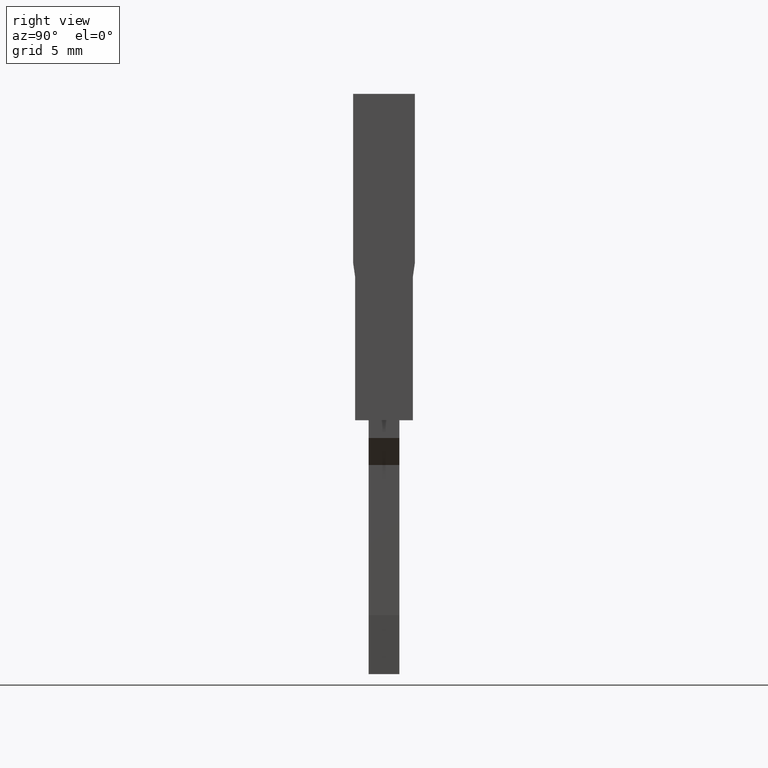
[diagram: clean part render]
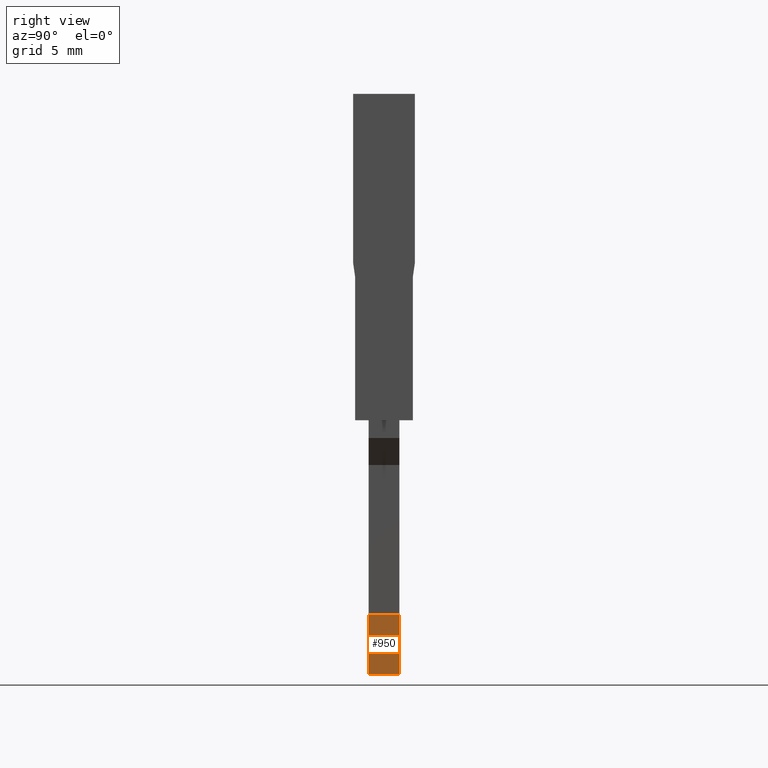
[diagram: same view with one face highlighted and labeled with its STEP entity id]
A machine part, right view. The second image highlights one B-rep face of the part: STEP entity #950.
In plain terms, the highlighted planar face has unit normal (0.9925, -0, -0.1219).
Its self-contained STEP definition (entity closure, byte-faithful):
#560=CARTESIAN_POINT('',(4.18553886079779,-33.1138427509399,
45.2799999999955));
#570=DIRECTION('',(6.07759233806784E-16,-0.121869343405167,
-0.99254615164132));
#580=DIRECTION('',(7.46234506576548E-17,0.99254615164132,
-0.121869343405167));
#590=AXIS2_PLACEMENT_3D('',#560,#570,#580);
#600=PLANE('',#590);
#610=CARTESIAN_POINT('',(5.78553886079761,-36.097809818213,
45.6463850860994));
#620=DIRECTION('',(1.,1.17216398676393E-26,6.12323399572238E-16));
#630=VECTOR('',#620,1.);
#640=LINE('',#610,#630);
#650=CARTESIAN_POINT('',(3.38553886079778,-36.097809818213,
45.6463850860994));
#660=VERTEX_POINT('',#650);
#670=CARTESIAN_POINT('',(4.98553886079779,-36.097809818213,
45.6463850860994));
#680=VERTEX_POINT('',#670);
#690=EDGE_CURVE('',#660,#680,#640,.T.);
#700=ORIENTED_EDGE('',*,*,#690,.F.);
#710=CARTESIAN_POINT('',(4.98553886079779,-24.3577888801298,
44.2048917702257));
#720=DIRECTION('',(-8.64074338180371E-17,-0.99254615164132,
0.121869343405167));
#730=VECTOR('',#720,1.);
#740=LINE('',#710,#730);
#750=CARTESIAN_POINT('',(4.98553886079779,-33.0323992863096,
45.2699999999525));
#760=VERTEX_POINT('',#750);
#770=EDGE_CURVE('',#760,#680,#740,.T.);
#780=ORIENTED_EDGE('',*,*,#770,.T.);
#790=CARTESIAN_POINT('',(5.78553886079761,-33.0323992863096,
45.2699999999525));
#800=DIRECTION('',(1.,8.91302486978461E-30,6.12323399573677E-16));
#810=VECTOR('',#800,1.);
#820=LINE('',#790,#810);
#830=CARTESIAN_POINT('',(3.38553886079778,-33.0323992863096,
45.2699999999525));
#840=VERTEX_POINT('',#830);
#850=EDGE_CURVE('',#840,#760,#820,.T.);
#860=ORIENTED_EDGE('',*,*,#850,.T.);
#870=CARTESIAN_POINT('',(3.38553886079778,-12.8979338181015,
42.7977984984234));
#880=DIRECTION('',(4.16333634234434E-17,0.99254615164132,
-0.121869343405167));
#890=VECTOR('',#880,1.);
#900=LINE('',#870,#890);
#910=EDGE_CURVE('',#660,#840,#900,.T.);
#920=ORIENTED_EDGE('',*,*,#910,.T.);
#930=EDGE_LOOP('',(#920,#860,#780,#700));
#940=FACE_OUTER_BOUND('',#930,.T.);
#950=ADVANCED_FACE('',(#940),#600,.T.);